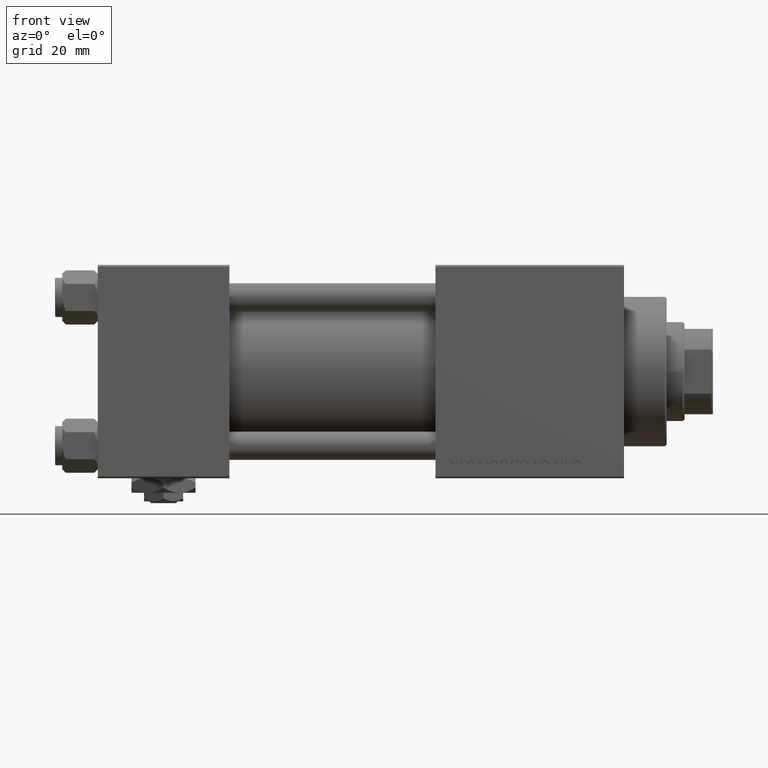
[diagram: clean part render]
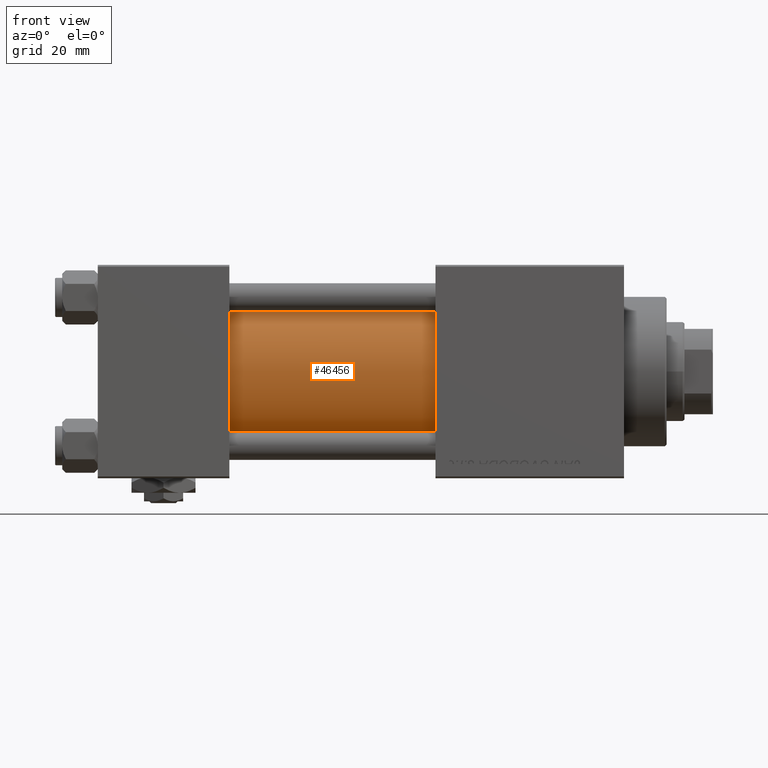
[diagram: same view with one face highlighted and labeled with its STEP entity id]
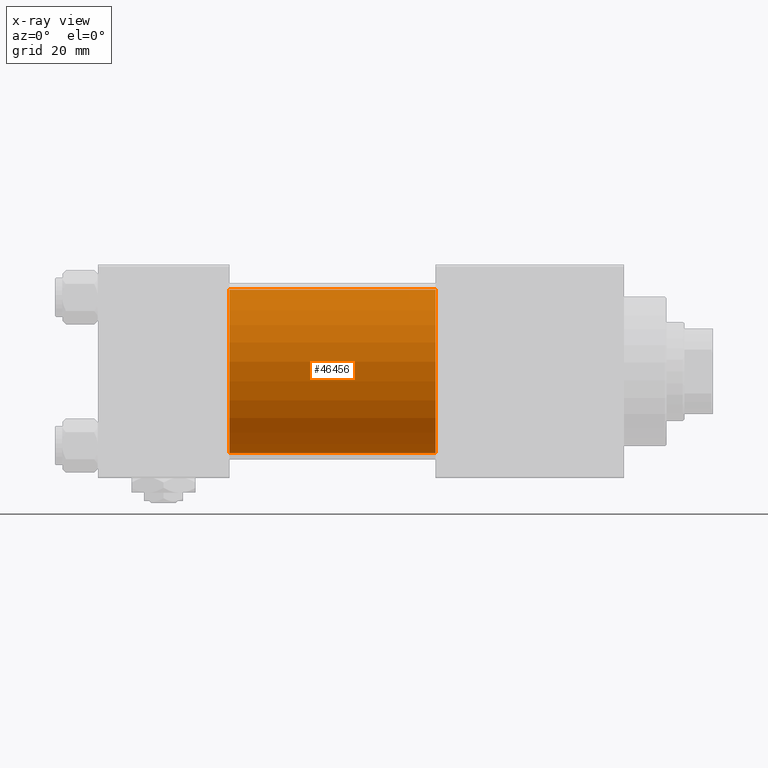
[diagram: x-ray of the same camera — body ghosted, the highlighted face saturated]
A machine part, front view. The second image highlights one B-rep face of the part: STEP entity #46456.
The next image is the same camera in x-ray: the body ghosted, the highlighted face saturated — about 1% of this face is hidden behind the body in this view.
In plain terms, the highlighted cylindrical surface (partial cylindrical patch) has radius 23 mm, axis along (-1, -0, -0).
Its self-contained STEP definition (entity closure, byte-faithful):
#3580 = VERTEX_POINT ( 'NONE', #6564 ) ;
#5278 = DIRECTION ( 'NONE',  ( 0.000000000000000000, 0.000000000000000000, 1.000000000000000000 ) ) ;
#6564 = CARTESIAN_POINT ( 'NONE',  ( 37.00000000000000000, 2.146024240737012665E-16, -23.00000000000000000 ) ) ;
#9315 = CARTESIAN_POINT ( 'NONE',  ( 95.00000000000000000, -2.602085213965210642E-15, 23.00000000000000000 ) ) ;
#11042 = DIRECTION ( 'NONE',  ( -1.000000000000000000, -0.000000000000000000, -0.000000000000000000 ) ) ;
#11452 = CARTESIAN_POINT ( 'NONE',  ( 95.00000000000000000, 2.146024240737012665E-16, -23.00000000000000000 ) ) ;
#15137 = VERTEX_POINT ( 'NONE', #46231 ) ;
#15250 = DIRECTION ( 'NONE',  ( 0.000000000000000000, 0.000000000000000000, 1.000000000000000000 ) ) ;
#18514 = CARTESIAN_POINT ( 'NONE',  ( 95.00000000000000000, 2.146024240737012665E-16, -23.00000000000000000 ) ) ;
#19444 = CARTESIAN_POINT ( 'NONE',  ( 37.00000000000000000, -2.602085213965210642E-15, 0.000000000000000000 ) ) ;
#22229 = ORIENTED_EDGE ( 'NONE', *, *, #22815, .T. ) ;
#22790 = EDGE_CURVE ( 'NONE', #15137, #3580, #25398, .T. ) ;
#22815 = EDGE_CURVE ( 'NONE', #40804, #15137, #35751, .T. ) ;
#23315 = ORIENTED_EDGE ( 'NONE', *, *, #22790, .T. ) ;
#23533 = DIRECTION ( 'NONE',  ( 0.000000000000000000, 0.000000000000000000, -1.000000000000000000 ) ) ;
#24770 = EDGE_CURVE ( 'NONE', #40804, #44864, #36408, .T. ) ;
#25235 = CARTESIAN_POINT ( 'NONE',  ( 95.00000000000000000, -2.602085213965210642E-15, 0.000000000000000000 ) ) ;
#25398 = CIRCLE ( 'NONE', #30459, 23.00000000000000000 ) ;
#29519 = AXIS2_PLACEMENT_3D ( 'NONE', #25235, #33142, #5278 ) ;
#30459 = AXIS2_PLACEMENT_3D ( 'NONE', #19444, #51238, #15250 ) ;
#33142 = DIRECTION ( 'NONE',  ( -1.000000000000000000, -0.000000000000000000, -0.000000000000000000 ) ) ;
#34576 = DIRECTION ( 'NONE',  ( -1.000000000000000000, -0.000000000000000000, -0.000000000000000000 ) ) ;
#35415 = VECTOR ( 'NONE', #34576, 1000.000000000000000 ) ;
#35751 = LINE ( 'NONE', #51751, #48053 ) ;
#36408 = CIRCLE ( 'NONE', #40607, 23.00000000000000000 ) ;
#38127 = FACE_OUTER_BOUND ( 'NONE', #42593, .T. ) ;
#38889 = ORIENTED_EDGE ( 'NONE', *, *, #24770, .F. ) ;
#39587 = CARTESIAN_POINT ( 'NONE',  ( 95.00000000000000000, -2.602085213965210642E-15, 0.000000000000000000 ) ) ;
#40607 = AXIS2_PLACEMENT_3D ( 'NONE', #39587, #48482, #23533 ) ;
#40804 = VERTEX_POINT ( 'NONE', #9315 ) ;
#42593 = EDGE_LOOP ( 'NONE', ( #46260, #38889, #22229, #23315 ) ) ;
#44864 = VERTEX_POINT ( 'NONE', #11452 ) ;
#46231 = CARTESIAN_POINT ( 'NONE',  ( 37.00000000000000000, -2.602085213965210642E-15, 23.00000000000000000 ) ) ;
#46260 = ORIENTED_EDGE ( 'NONE', *, *, #46944, .F. ) ;
#46456 = ADVANCED_FACE ( 'NONE', ( #38127 ), #50179, .T. ) ;
#46944 = EDGE_CURVE ( 'NONE', #44864, #3580, #51094, .T. ) ;
#48053 = VECTOR ( 'NONE', #11042, 1000.000000000000000 ) ;
#48482 = DIRECTION ( 'NONE',  ( 1.000000000000000000, 0.000000000000000000, 0.000000000000000000 ) ) ;
#50179 = CYLINDRICAL_SURFACE ( 'NONE', #29519, 23.00000000000000000 ) ;
#51094 = LINE ( 'NONE', #18514, #35415 ) ;
#51238 = DIRECTION ( 'NONE',  ( 1.000000000000000000, -0.000000000000000000, 0.000000000000000000 ) ) ;
#51751 = CARTESIAN_POINT ( 'NONE',  ( 95.00000000000000000, -2.602085213965210642E-15, 23.00000000000000000 ) ) ;